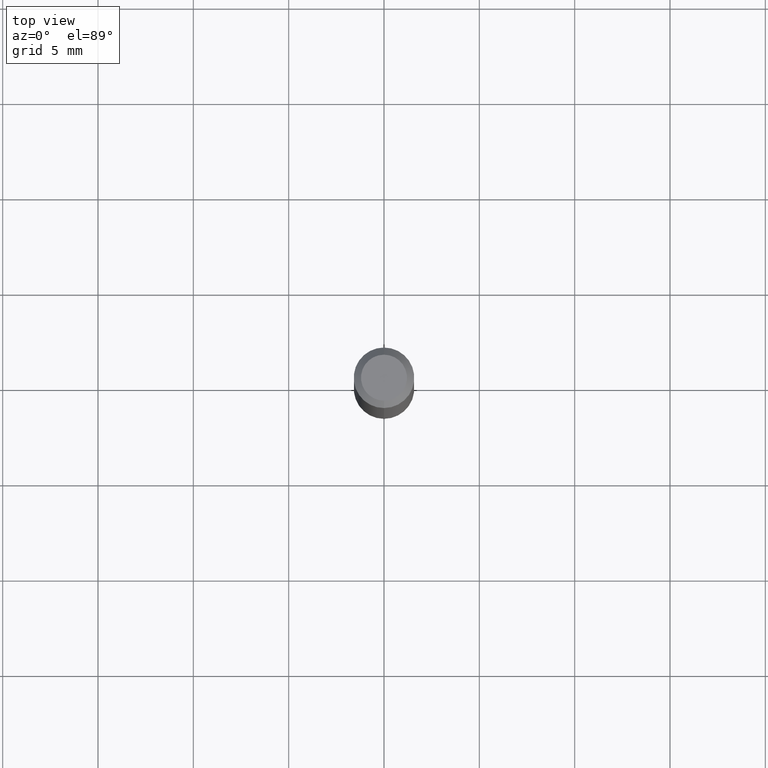
[diagram: clean part render]
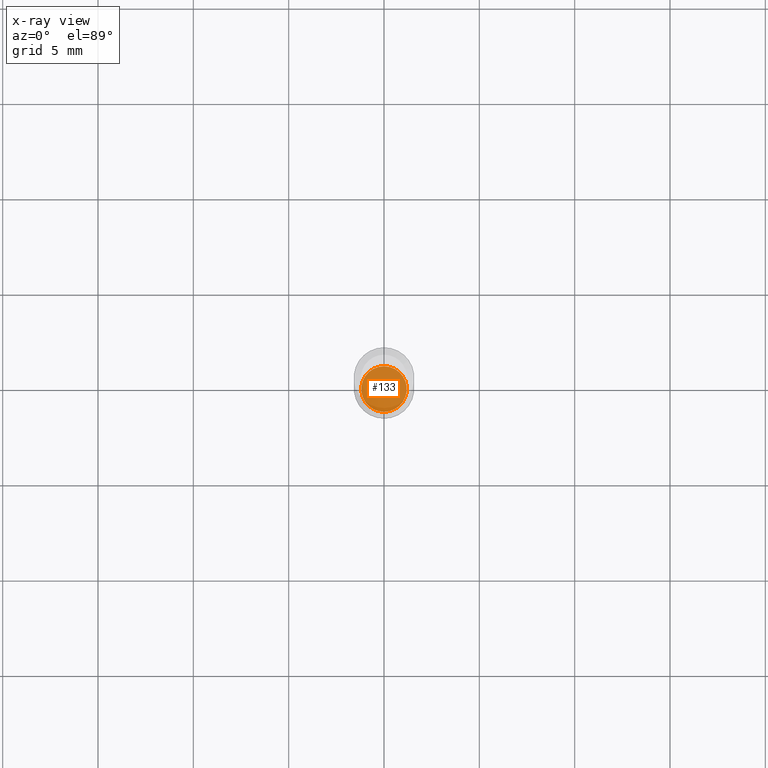
[diagram: x-ray — body ghosted, one internal face saturated and labeled with its STEP entity id]
A machine part, top view, then the same camera in x-ray: the body is ghosted and one INTERNAL B-rep face — a face not visible from any outside direction — is saturated and labeled: STEP entity #133.
In plain terms, the highlighted planar face has unit normal (-0, 0, 1).
Its self-contained STEP definition (entity closure, byte-faithful):
#8 = ORIENTED_EDGE ( 'NONE', *, *, #219, .F. ) ;
#80 = DIRECTION ( 'NONE',  ( -6.982962677686266711E-15, -1.000000000000000000, 5.812442539711199378E-15 ) ) ;
#93 = CARTESIAN_POINT ( 'NONE',  ( 3.357314426466801272E-16, 0.04699999999999526085, -1.357000000000000206 ) ) ;
#116 = DIRECTION ( 'NONE',  ( -6.982962677686265922E-15, -1.000000000000000000, 3.491447514900276167E-15 ) ) ;
#129 = AXIS2_PLACEMENT_3D ( 'NONE', #275, #273, #80 ) ;
#133 = ADVANCED_FACE ( 'NONE', ( #181 ), #344, .F. ) ;
#155 = CARTESIAN_POINT ( 'NONE',  ( 3.318533221156802461E-29, -4.737894277719674668E-15, -1.356999999999999984 ) ) ;
#181 = FACE_OUTER_BOUND ( 'NONE', #401, .T. ) ;
#188 = VERTEX_POINT ( 'NONE', #93 ) ;
#210 = VERTEX_POINT ( 'NONE', #446 ) ;
#219 = EDGE_CURVE ( 'NONE', #210, #188, #478, .T. ) ;
#248 = AXIS2_PLACEMENT_3D ( 'NONE', #264, #387, #257 ) ;
#257 = DIRECTION ( 'NONE',  ( -6.982962677686266711E-15, -1.000000000000000000, 5.812442539711199378E-15 ) ) ;
#264 = CARTESIAN_POINT ( 'NONE',  ( 3.318533221156802461E-29, -4.737894277719674668E-15, -1.356999999999999984 ) ) ;
#273 = DIRECTION ( 'NONE',  ( -2.445492425318203603E-29, 3.491447514900276167E-15, 1.000000000000000000 ) ) ;
#275 = CARTESIAN_POINT ( 'NONE',  ( 3.318533221156802461E-29, -4.737894277719674668E-15, -1.356999999999999984 ) ) ;
#344 = PLANE ( 'NONE',  #486 ) ;
#387 = DIRECTION ( 'NONE',  ( -2.445492425318203603E-29, 3.491447514900276167E-15, 1.000000000000000000 ) ) ;
#398 = EDGE_CURVE ( 'NONE', #188, #210, #434, .T. ) ;
#401 = EDGE_LOOP ( 'NONE', ( #8, #490 ) ) ;
#434 = CIRCLE ( 'NONE', #129, 0.04699999999999999317 ) ;
#446 = CARTESIAN_POINT ( 'NONE',  ( -3.281992458512213224E-16, -0.04700000000000473244, -1.356999999999999762 ) ) ;
#469 = DIRECTION ( 'NONE',  ( -2.445492425318203323E-29, 3.491447514900276167E-15, 1.000000000000000000 ) ) ;
#478 = CIRCLE ( 'NONE', #248, 0.04699999999999999317 ) ;
#486 = AXIS2_PLACEMENT_3D ( 'NONE', #155, #469, #116 ) ;
#490 = ORIENTED_EDGE ( 'NONE', *, *, #398, .F. ) ;